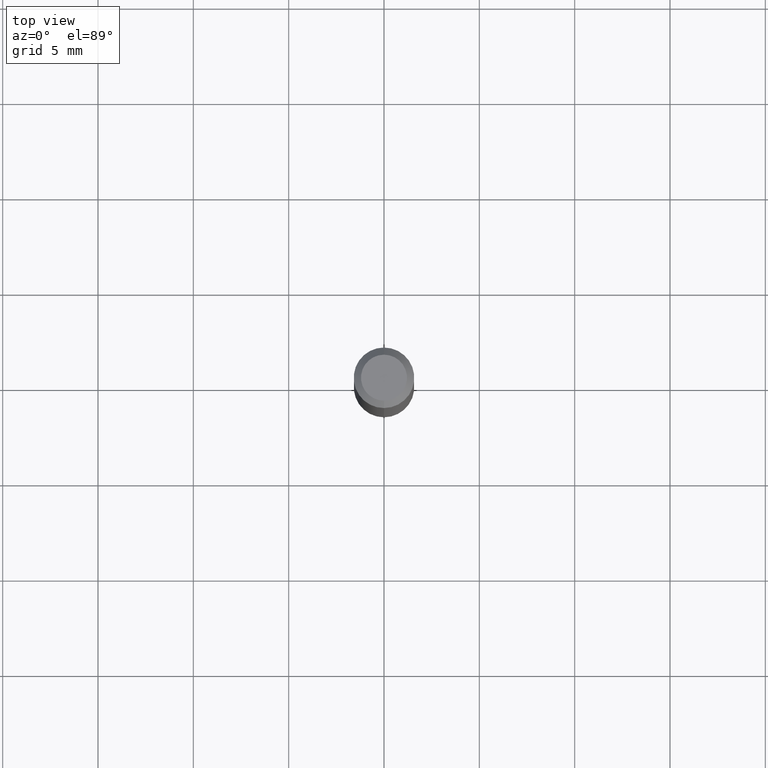
[diagram: clean part render]
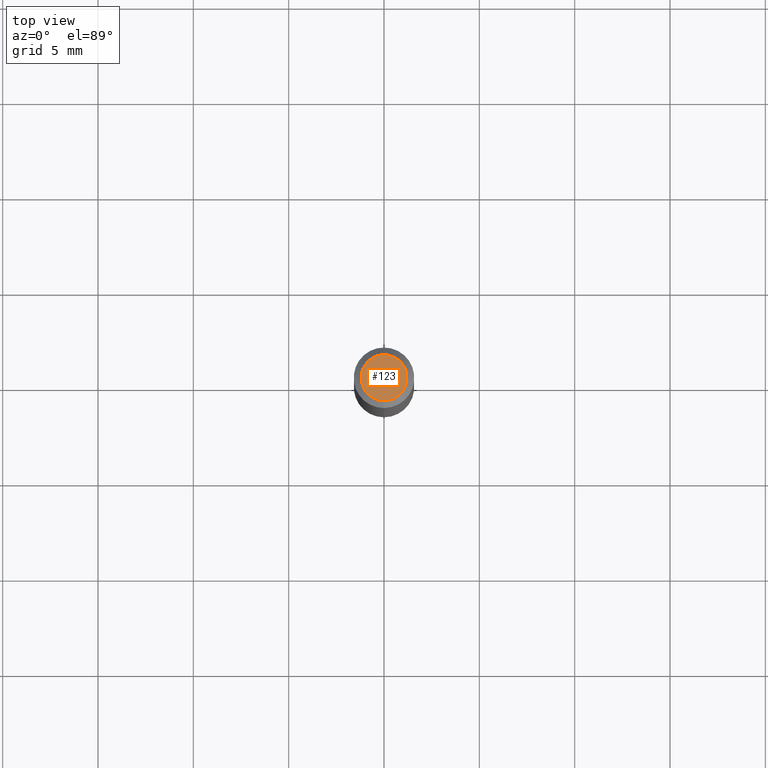
[diagram: same view with one face highlighted and labeled with its STEP entity id]
A machine part, top view. The second image highlights one B-rep face of the part: STEP entity #123.
In plain terms, the highlighted planar face has unit normal (0, -0, -1).
Its self-contained STEP definition (entity closure, byte-faithful):
#5 = DIRECTION ( 'NONE',  ( 6.982962677686265922E-15, 1.000000000000000000, -3.491657181334983134E-15 ) ) ;
#42 = DIRECTION ( 'NONE',  ( -6.982962677686266711E-15, -1.000000000000000000, 3.491657181334983529E-15 ) ) ;
#78 = CIRCLE ( 'NONE', #502, 0.04749999999999999362 ) ;
#86 = DIRECTION ( 'NONE',  ( -2.445346016029371458E-29, 3.491657181334983134E-15, 1.000000000000000000 ) ) ;
#115 = CARTESIAN_POINT ( 'NONE',  ( 7.068409209779156396E-46, -1.009283006010519705E-31, -2.890555840950673101E-17 ) ) ;
#116 = EDGE_CURVE ( 'NONE', #411, #257, #438, .T. ) ;
#123 = ADVANCED_FACE ( 'NONE', ( #200 ), #404, .F. ) ;
#141 = EDGE_CURVE ( 'NONE', #257, #411, #78, .T. ) ;
#200 = FACE_OUTER_BOUND ( 'NONE', #212, .T. ) ;
#201 = CARTESIAN_POINT ( 'NONE',  ( 7.068409209779156396E-46, -1.009283006010519705E-31, -2.890555840950673101E-17 ) ) ;
#202 = DIRECTION ( 'NONE',  ( -6.982962677686266711E-15, -1.000000000000000000, 3.491657181334983529E-15 ) ) ;
#212 = EDGE_LOOP ( 'NONE', ( #368, #463 ) ) ;
#245 = DIRECTION ( 'NONE',  ( -2.445346016029371458E-29, 3.491657181334983134E-15, 1.000000000000000000 ) ) ;
#257 = VERTEX_POINT ( 'NONE', #398 ) ;
#356 = CARTESIAN_POINT ( 'NONE',  ( 3.316907271900976096E-16, 0.04749999999999999362, -1.803064953181650371E-16 ) ) ;
#358 = DIRECTION ( 'NONE',  ( 2.445346016029370897E-29, -3.491657181334983134E-15, -1.000000000000000000 ) ) ;
#368 = ORIENTED_EDGE ( 'NONE', *, *, #141, .T. ) ;
#371 = AXIS2_PLACEMENT_3D ( 'NONE', #201, #245, #202 ) ;
#398 = CARTESIAN_POINT ( 'NONE',  ( 3.840629472727447874E-16, 0.04749999999999999362, -1.947592745229184365E-16 ) ) ;
#404 = PLANE ( 'NONE',  #428 ) ;
#411 = VERTEX_POINT ( 'NONE', #451 ) ;
#428 = AXIS2_PLACEMENT_3D ( 'NONE', #356, #358, #5 ) ;
#438 = CIRCLE ( 'NONE', #371, 0.04749999999999999362 ) ;
#451 = CARTESIAN_POINT ( 'NONE',  ( -3.773273898774340269E-16, -0.04749999999999999362, 1.369481577039049376E-16 ) ) ;
#463 = ORIENTED_EDGE ( 'NONE', *, *, #116, .T. ) ;
#502 = AXIS2_PLACEMENT_3D ( 'NONE', #115, #86, #42 ) ;